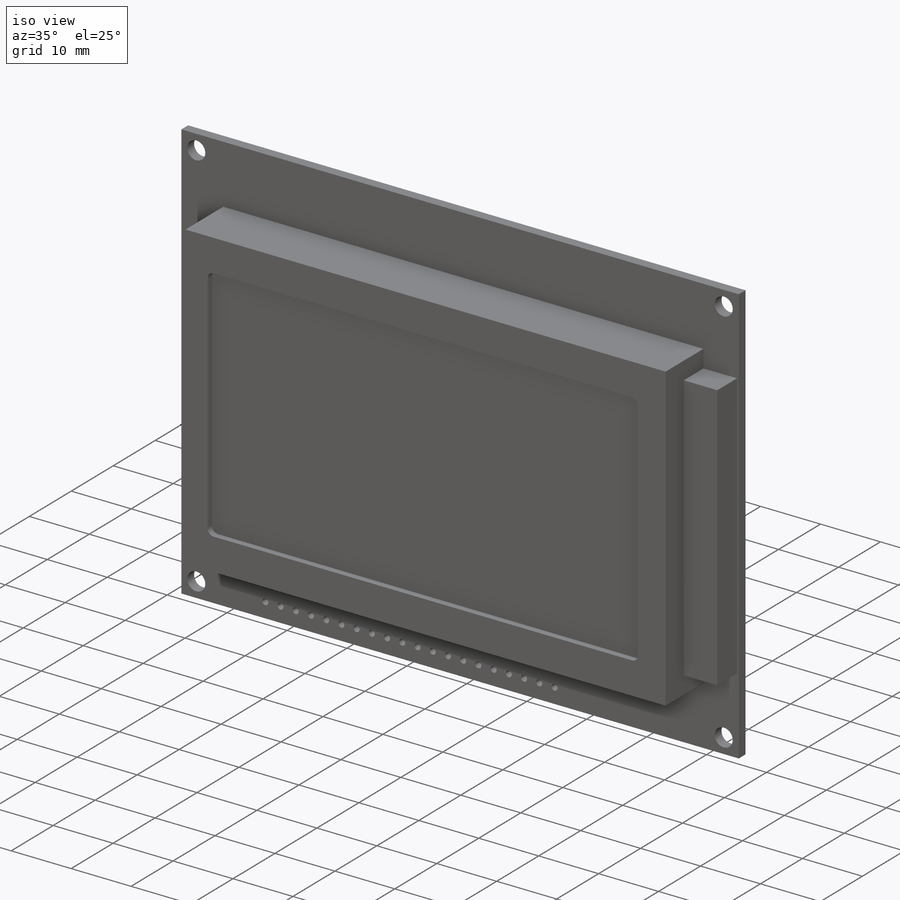
[diagram: iso view]
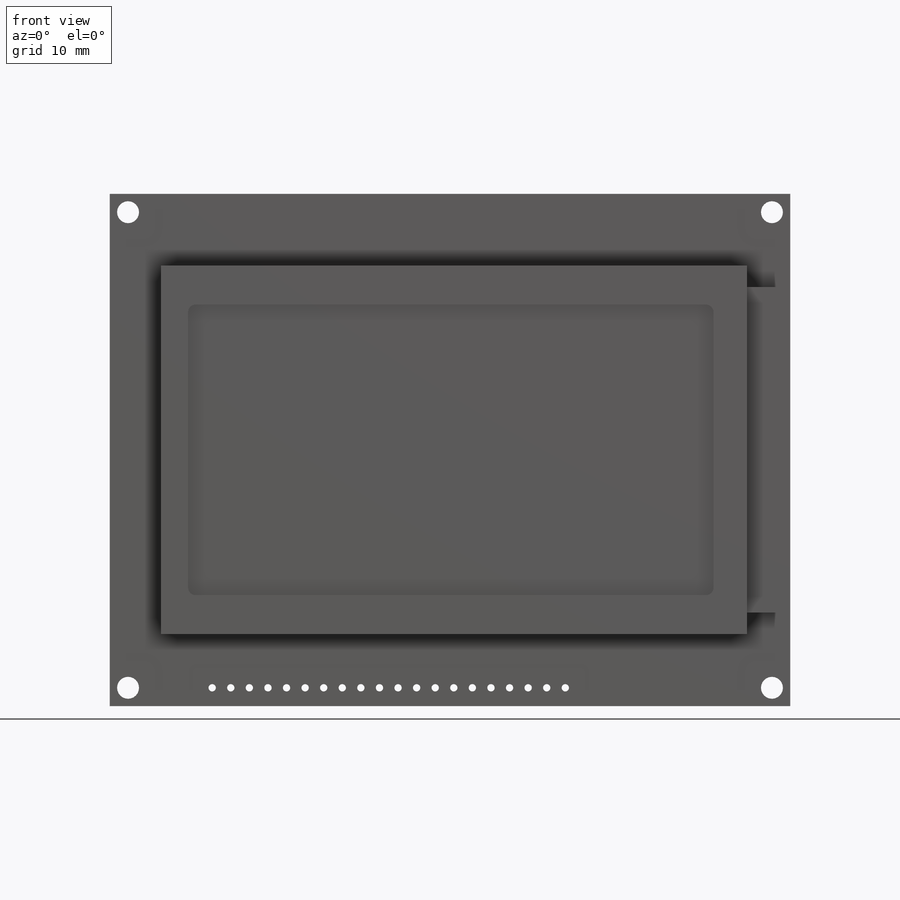
[diagram: front view]
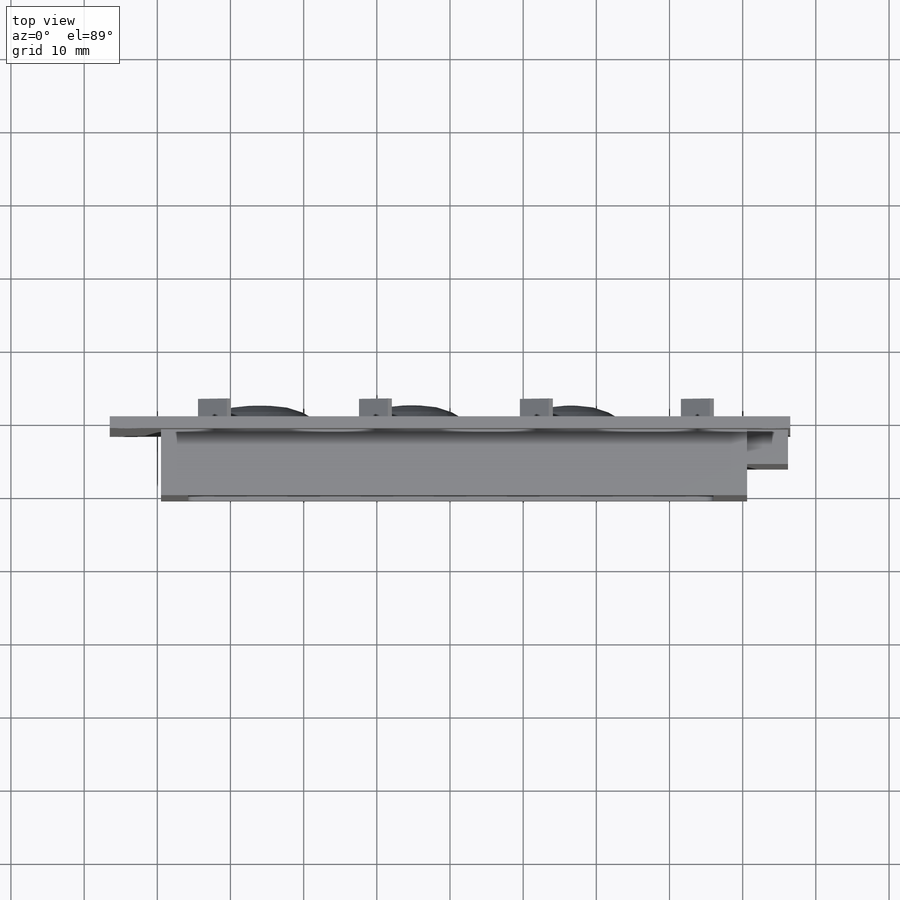
[diagram: top view]
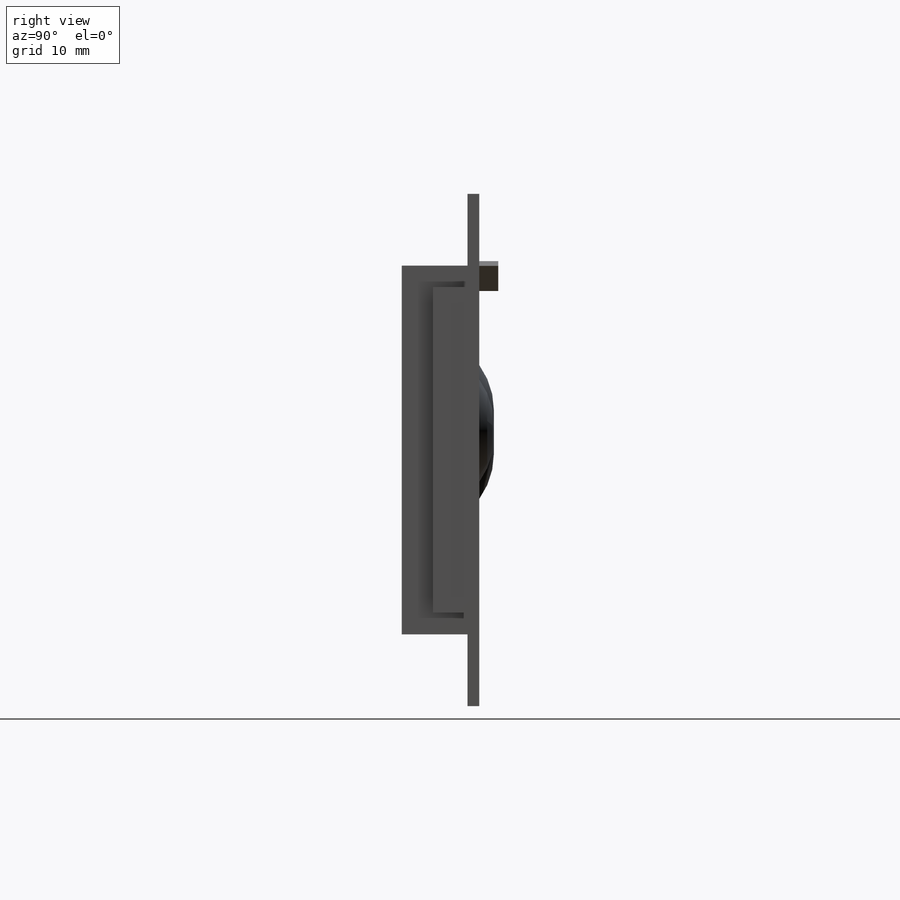
[diagram: right view]
SOLIDWORKS PART (.sldprt)
format: sldprt  version: not decoded by parser v0  size: 756,736 bytes
history: native  units: mm
features: sketch x9, extrude x6, cut_extrude x3, material x1, pattern_linear x1, fillet x1 (+14 scaffold rows collapsed)
feature tree (35):
  scaffold x14  (default folders/planes/origin — collapsed)
  material  "Material <not specified>"
  sketch  "Sketch1"  dims[D1=93.0mm D2=70.0mm]
  extrude  "base pcb"  Depth=1.6mm
  sketch  "Sketch2"  dims[D3=3.0mm D1=65.0mm D2=88.0mm]
  cut_extrude  "mount hole"  [1 undecoded]
  sketch  "Sketch3"  dims[c1.D1=~3.084629mm c1.D3=1.0mm c2.D1=2.5mm c2.D2=14.0mm]
  cut_extrude  "pin"  [1 undecoded]
  sketch  "Sketch4"  dims[D1=5.0mm D2=2.54mm]
  extrude  "gild"  Depth=0.01mm
  sketch  "Sketch5"  dims[D1=50.4mm D2=80.1mm D3=7.0mm D4=5.9mm]
  extrude  "metal shield"  Depth=9mm
  sketch  "Sketch6"  dims[D3=1.0mm D1=71.8mm D2=39.7mm D4=4.6mm D5=3.7mm]
  cut_extrude  "glass"  Depth=1mm
  sketch  "Sketch9"  dims[D1=44.5mm D2=0.3mm]
  extrude  "backlight"  Depth=4.7mm
  sketch  "Sketch7"
  extrude  "shield_clip"  Depth=2.6mm
  pattern_linear  "LPattern1"  Count1=4 Count2=1 Spacing1=22mm Spacing2=10mm
  sketch  "Sketch8"  dims[D1=~6.988719mm]
  extrude  "IC"  Depth=2mm
  fillet  "IC fillet"  Radius=10.5mm
decode coverage: 17 of 20 modeling features carry decoded parameters
note: ~ marks probable driven/reference dimensions
note: 2 parameter values undecoded
note: suppression state not decoded; provenance and decode notes live in map.json
